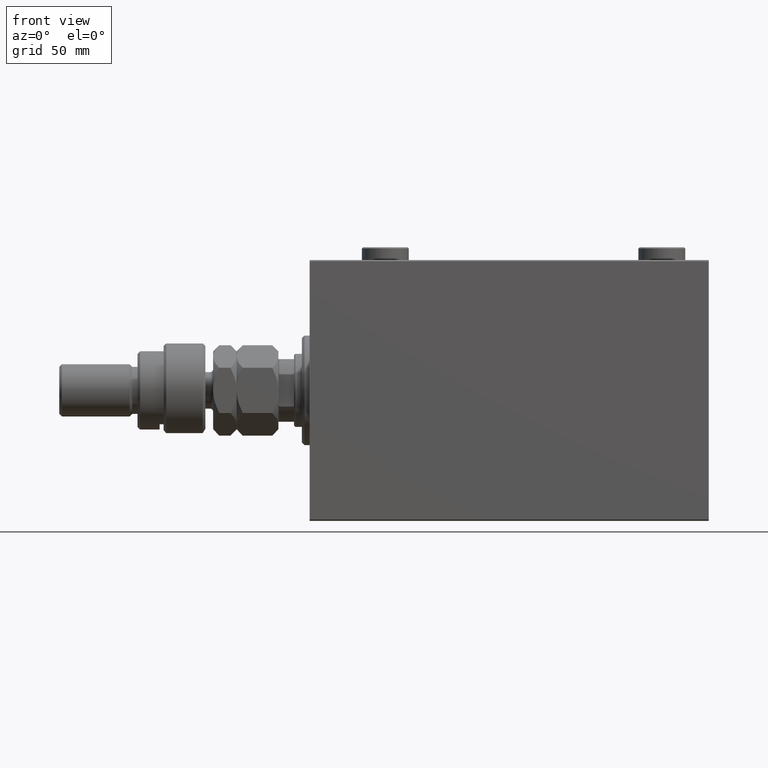
[diagram: clean part render]
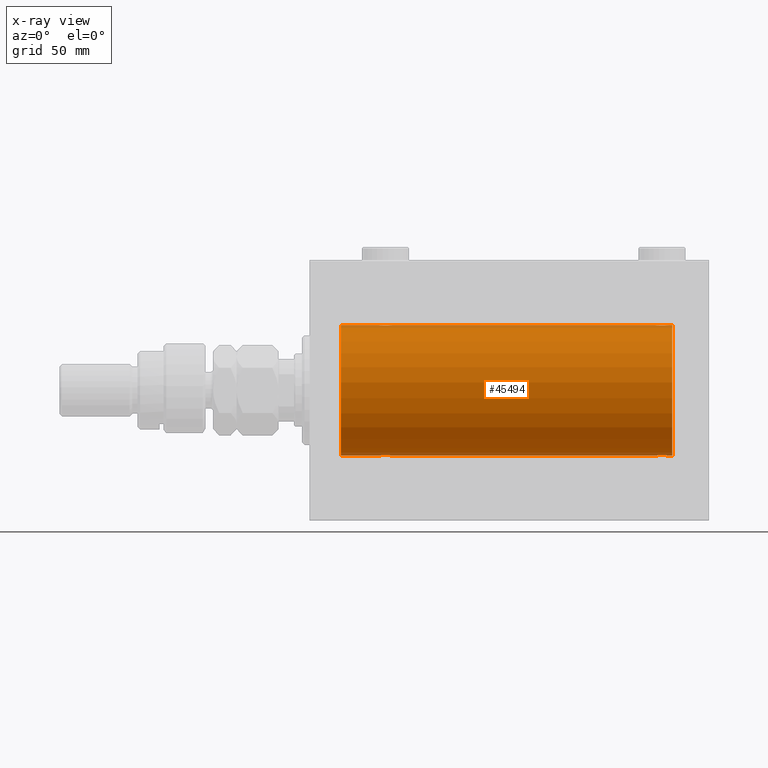
[diagram: x-ray — body ghosted, one internal face saturated and labeled with its STEP entity id]
A machine part, front view, then the same camera in x-ray: the body is ghosted and one INTERNAL B-rep face — a face not visible from any outside direction — is saturated and labeled: STEP entity #45494.
In plain terms, the highlighted cylindrical surface (partial cylindrical patch) has radius 25 mm, axis along (-1, -0, -0).
Its self-contained STEP definition (entity closure, byte-faithful):
#341 = CARTESIAN_POINT ( 'NONE',  ( 132.6278403059139634, -0.8058335233485478533, 24.98746277938383287 ) ) ;
#908 = CARTESIAN_POINT ( 'NONE',  ( 26.57985090779070703, -0.6480119923854250619, 24.99212088949390420 ) ) ;
#921 = ORIENTED_EDGE ( 'NONE', *, *, #1976, .F. ) ;
#1273 = CARTESIAN_POINT ( 'NONE',  ( 134.3543933385136881, -2.420689345803765047, -24.88254961038873248 ) ) ;
#1683 = VERTEX_POINT ( 'NONE', #27495 ) ;
#1739 = CARTESIAN_POINT ( 'NONE',  ( 137.2476025101955202, -1.106703319666879404, -24.97594585958023572 ) ) ;
#1766 = CARTESIAN_POINT ( 'NONE',  ( 133.1158761721353301, -1.651251241585108387, 24.94567559498349141 ) ) ;
#1798 = CARTESIAN_POINT ( 'NONE',  ( 31.42014909220930363, -0.6480119923854200659, -24.99212088949392196 ) ) ;
#1976 = EDGE_CURVE ( 'NONE', #23039, #1683, #23292, .T. ) ;
#2096 = CARTESIAN_POINT ( 'NONE',  ( 30.52256774340189693, -1.989585286700251920, 24.92087098724766747 ) ) ;
#2335 = CARTESIAN_POINT ( 'NONE',  ( 30.10723845838409929, -2.247417070759903268, 24.89885693081946272 ) ) ;
#2523 = CARTESIAN_POINT ( 'NONE',  ( 28.83676410361457343, -2.500125740978191846, -24.87467329022545925 ) ) ;
#4224 = VERTEX_POINT ( 'NONE', #15696 ) ;
#4302 = ORIENTED_EDGE ( 'NONE', *, *, #45968, .T. ) ;
#4979 = CARTESIAN_POINT ( 'NONE',  ( 134.6705231988572962, -2.483544361357272745, 24.87635491893501083 ) ) ;
#5011 = CARTESIAN_POINT ( 'NONE',  ( 30.65383336149337978, -1.881857718844712091, -24.92933960374833546 ) ) ;
#5070 = CARTESIAN_POINT ( 'NONE',  ( 31.43349355239748988, -0.6588655613945929579, 24.99312727339970053 ) ) ;
#5212 = ORIENTED_EDGE ( 'NONE', *, *, #27537, .T. ) ;
#5453 = CARTESIAN_POINT ( 'NONE',  ( 135.3259657003945904, -2.484007091859768313, 24.87630842367763151 ) ) ;
#5538 = CARTESIAN_POINT ( 'NONE',  ( 30.88185954148645251, -1.653834020452945364, 24.94550385189585029 ) ) ;
#5658 = CARTESIAN_POINT ( 'NONE',  ( 133.3487886644089144, -1.884161199660626229, -24.92916496727982789 ) ) ;
#5949 = CARTESIAN_POINT ( 'NONE',  ( 139.0000000000000000, 0.000000000000000000, 0.000000000000000000 ) ) ;
#6201 = CARTESIAN_POINT ( 'NONE',  ( 26.75393620905933290, -1.109818057797416158, -24.97580694515542277 ) ) ;
#6291 = DIRECTION ( 'NONE',  ( -1.000000000000000000, -0.000000000000000000, -0.000000000000000000 ) ) ;
#6350 = CARTESIAN_POINT ( 'NONE',  ( 139.0000000000000000, 3.061616997868383043E-15, -25.00000000000000000 ) ) ;
#7176 = CARTESIAN_POINT ( 'NONE',  ( 27.47743225659810307, -1.989585286700244149, -24.92087098724765681 ) ) ;
#7541 = CARTESIAN_POINT ( 'NONE',  ( 26.75239748980449050, -1.106703319666886065, 24.97594585958023572 ) ) ;
#7764 = CARTESIAN_POINT ( 'NONE',  ( 26.50000000000000355, -1.940558383798427991E-23, 25.00000000000000000 ) ) ;
#8057 = DIRECTION ( 'NONE',  ( -1.000000000000000000, 0.000000000000000000, 0.000000000000000000 ) ) ;
#8500 = CARTESIAN_POINT ( 'NONE',  ( 27.01250184165601453, -1.525407911884368861, 24.95379469572361941 ) ) ;
#8651 = CARTESIAN_POINT ( 'NONE',  ( 135.8043566091629941, -2.372734907014176553, 24.88722742718433167 ) ) ;
#8734 = CARTESIAN_POINT ( 'NONE',  ( 27.74616804575498108, -2.169003991399877318, 24.90589728951138326 ) ) ;
#8855 = CARTESIAN_POINT ( 'NONE',  ( 137.4841784005765817, -0.3254210271412169564, -24.99840249400844527 ) ) ;
#8971 = CARTESIAN_POINT ( 'NONE',  ( 28.19211657594193809, -2.371528299825754083, 24.88734287464370709 ) ) ;
#9090 = CARTESIAN_POINT ( 'NONE',  ( 135.6490439016909590, -2.419770561643903140, -24.88263927071751169 ) ) ;
#9116 = CARTESIAN_POINT ( 'NONE',  ( 137.4999999999999432, -0.3305063766663741132, 24.99999999999999645 ) ) ;
#9327 = CARTESIAN_POINT ( 'NONE',  ( 135.8078834240580761, -2.371528299825742092, -24.88734287464371775 ) ) ;
#9904 = ORIENTED_EDGE ( 'NONE', *, *, #17117, .T. ) ;
#10111 = CARTESIAN_POINT ( 'NONE',  ( 27.89276154161591137, -2.247417070759893498, -24.89885693081945917 ) ) ;
#10356 = VERTEX_POINT ( 'NONE', #35868 ) ;
#10754 = EDGE_LOOP ( 'NONE', ( #32730, #9904, #28607, #45910, #44148, #5212, #35202, #921, #4302, #18362, #40182, #15132 ) ) ;
#11943 = CARTESIAN_POINT ( 'NONE',  ( 26.50000000000000355, -1.940558383798427991E-23, 25.00000000000000000 ) ) ;
#12024 = CARTESIAN_POINT ( 'NONE',  ( 26.50000000000000355, -4.113702575029848227E-15, -25.00000000000000000 ) ) ;
#12334 = CARTESIAN_POINT ( 'NONE',  ( 137.4334935523974650, -0.6588655613945841871, 24.99312727339970763 ) ) ;
#12363 = CARTESIAN_POINT ( 'NONE',  ( 31.17011290280925451, -1.252049606094333578, -24.96900299967627745 ) ) ;
#12545 = CARTESIAN_POINT ( 'NONE',  ( 137.1701129028092225, -1.252049606094327583, -24.96900299967627390 ) ) ;
#12570 = CARTESIAN_POINT ( 'NONE',  ( 133.8896320349114148, -2.245863995402903157, 24.89899750494197761 ) ) ;
#12779 = CARTESIAN_POINT ( 'NONE',  ( 132.8317235850604447, -1.255214705003191877, -24.96884293994577675 ) ) ;
#12804 = CARTESIAN_POINT ( 'NONE',  ( 135.1632358963854017, -2.500125740978198063, 24.87467329022544504 ) ) ;
#13042 = CARTESIAN_POINT ( 'NONE',  ( 134.1921165759419239, -2.371528299825750530, 24.88734287464371420 ) ) ;
#13128 = CARTESIAN_POINT ( 'NONE',  ( 31.24606379094067066, -1.109818057797421709, 24.97580694515541921 ) ) ;
#13550 = CARTESIAN_POINT ( 'NONE',  ( 30.11036796508864910, -2.245863995402895164, -24.89899750494197406 ) ) ;
#14122 = EDGE_CURVE ( 'NONE', #4224, #1683, #17685, .T. ) ;
#14288 = CARTESIAN_POINT ( 'NONE',  ( 27.34878866440888245, -1.884161199660614017, -24.92916496727982434 ) ) ;
#14536 = AXIS2_PLACEMENT_3D ( 'NONE', #33121, #29436, #44447 ) ;
#14551 = LINE ( 'NONE', #17988, #26831 ) ;
#15132 = ORIENTED_EDGE ( 'NONE', *, *, #17538, .F. ) ;
#15339 = B_SPLINE_CURVE_WITH_KNOTS ( 'NONE', 3,
 ( #24107, #16047, #35401, #1798, #46006, #16760, #12363, #31709, #38615, #5011, #34930, #46710, #13550, #17238, #48182, #29488, #18213, #2523, #36867, #47929, #32686, #10111, #21156, #7176, #14288, #21658, #47189, #36379, #6201, #25315, #33176, #28501 ),
 .UNSPECIFIED., .F., .F.,
 ( 4, 2, 2, 2, 2, 2, 2, 2, 2, 2, 2, 2, 2, 2, 2, 4 ),
 ( 0.007821024441662299820, 0.008309723826317907958, 0.008798423210973517830, 0.009287122595629122498, 0.009775821980284727167, 0.01026452136494033184, 0.01075322074959593650, 0.01124192013425154291, 0.01173061951890714757, 0.01221931890356275051, 0.01270801828821835691, 0.01319671767287396158, 0.01368541705752956625, 0.01417411644218517092, 0.01466281582684077732, 0.01564021459615199186 ),
 .UNSPECIFIED. ) ;
#15696 = CARTESIAN_POINT ( 'NONE',  ( 12.00000000000001066, 3.061616997868383043E-15, -25.00000000000000000 ) ) ;
#16047 = CARTESIAN_POINT ( 'NONE',  ( 31.50000000000000000, -0.1631750940176180942, -25.00000000000001066 ) ) ;
#16226 = CARTESIAN_POINT ( 'NONE',  ( 133.1181404585135510, -1.653834020452947806, -24.94550385189585029 ) ) ;
#16253 = CARTESIAN_POINT ( 'NONE',  ( 133.0125018416559612, -1.525407911884361534, 24.95379469572361941 ) ) ;
#16337 = CARTESIAN_POINT ( 'NONE',  ( 139.0000000000000000, 0.000000000000000000, 25.00000000000000000 ) ) ;
#16462 = CARTESIAN_POINT ( 'NONE',  ( 136.1103679650886988, -2.245863995402891167, -24.89899750494197406 ) ) ;
#16494 = LINE ( 'NONE', #20650, #22756 ) ;
#16570 = CARTESIAN_POINT ( 'NONE',  ( 30.65121133559112110, -1.884161199660624009, 24.92916496727982434 ) ) ;
#16700 = CARTESIAN_POINT ( 'NONE',  ( 132.5665064476025634, -0.6588655613945936240, -24.99312727339970408 ) ) ;
#16727 = CARTESIAN_POINT ( 'NONE',  ( 137.5000000000000000, 1.260306552623302501E-15, 25.00000000000000000 ) ) ;
#16760 = CARTESIAN_POINT ( 'NONE',  ( 31.24760251019550950, -1.106703319666878071, -24.97594585958023572 ) ) ;
#16937 = CARTESIAN_POINT ( 'NONE',  ( 133.7491597607594542, -2.170728182476728829, -24.90574631553724672 ) ) ;
#17117 = EDGE_CURVE ( 'NONE', #47556, #10356, #37019, .T. ) ;
#17229 = CYLINDRICAL_SURFACE ( 'NONE', #27108, 25.00000000000000000 ) ;
#17238 = CARTESIAN_POINT ( 'NONE',  ( 29.80788342405805835, -2.371528299825741648, -24.88734287464370709 ) ) ;
#17311 = LINE ( 'NONE', #43579, #25430 ) ;
#17538 = EDGE_CURVE ( 'NONE', #47105, #46636, #39914, .T. ) ;
#17685 = CIRCLE ( 'NONE', #14536, 25.00000000000000000 ) ;
#17988 = CARTESIAN_POINT ( 'NONE',  ( 139.0000000000000000, 3.061616997868383043E-15, -25.00000000000000000 ) ) ;
#18122 = VERTEX_POINT ( 'NONE', #35801 ) ;
#18157 = AXIS2_PLACEMENT_3D ( 'NONE', #18847, #8057, #33569 ) ;
#18213 = CARTESIAN_POINT ( 'NONE',  ( 29.16706495178060621, -2.499872792855077464, -24.87469871246082320 ) ) ;
#18362 = ORIENTED_EDGE ( 'NONE', *, *, #41137, .F. ) ;
#18654 = VECTOR ( 'NONE', #36527, 1000.000000000000000 ) ;
#18847 = CARTESIAN_POINT ( 'NONE',  ( 139.0000000000000000, 0.000000000000000000, 0.000000000000000000 ) ) ;
#18968 = CARTESIAN_POINT ( 'NONE',  ( 132.5798509077906999, -0.6480119923854225084, 24.99212088949390775 ) ) ;
#20019 = CARTESIAN_POINT ( 'NONE',  ( 28.35095609830903740, -2.419770561643915130, 24.88263927071751169 ) ) ;
#20142 = CARTESIAN_POINT ( 'NONE',  ( 133.4774322565981208, -1.989585286700256805, -24.92087098724766747 ) ) ;
#20207 = CARTESIAN_POINT ( 'NONE',  ( 132.5000000000000000, -1.941505016884693205E-23, 25.00000000000000000 ) ) ;
#20490 = CARTESIAN_POINT ( 'NONE',  ( 30.98538033717094464, -1.528152964861317020, 24.95362559291378801 ) ) ;
#20612 = CARTESIAN_POINT ( 'NONE',  ( 132.5000000000000000, -0.3305063766663871583, -25.00000000000000000 ) ) ;
#20650 = CARTESIAN_POINT ( 'NONE',  ( 139.0000000000000000, 3.061616997868383043E-15, -25.00000000000000000 ) ) ;
#20735 = CARTESIAN_POINT ( 'NONE',  ( 27.88963203491136156, -2.245863995402906266, 24.89899750494197050 ) ) ;
#21011 = CARTESIAN_POINT ( 'NONE',  ( 31.50000000000000000, 3.061616978460191625E-15, -25.00000000000000000 ) ) ;
#21156 = CARTESIAN_POINT ( 'NONE',  ( 27.74915976075945068, -2.170728182476717283, -24.90574631553725027 ) ) ;
#21305 = CIRCLE ( 'NONE', #18157, 25.00000000000000000 ) ;
#21658 = CARTESIAN_POINT ( 'NONE',  ( 27.11814045851354038, -1.653834020452936038, -24.94550385189584674 ) ) ;
#21812 = VECTOR ( 'NONE', #6291, 1000.000000000000000 ) ;
#22749 = VERTEX_POINT ( 'NONE', #21011 ) ;
#22756 = VECTOR ( 'NONE', #31685, 1000.000000000000000 ) ;
#23039 = VERTEX_POINT ( 'NONE', #7764 ) ;
#23292 = LINE ( 'NONE', #41249, #32279 ) ;
#23367 = CARTESIAN_POINT ( 'NONE',  ( 132.8298870971907490, -1.252049606094332246, 24.96900299967627390 ) ) ;
#23460 = CARTESIAN_POINT ( 'NONE',  ( 27.11587617213529100, -1.651251241585107055, 24.94567559498349141 ) ) ;
#23690 = CARTESIAN_POINT ( 'NONE',  ( 28.83293504821939379, -2.499872792855087233, 24.87469871246083031 ) ) ;
#23813 = CARTESIAN_POINT ( 'NONE',  ( 137.4201490922092717, -0.6480119923854171793, -24.99212088949390775 ) ) ;
#23841 = CARTESIAN_POINT ( 'NONE',  ( 136.5225677434018792, -1.989585286700258138, 24.92087098724766037 ) ) ;
#24107 = CARTESIAN_POINT ( 'NONE',  ( 31.50000000000000000, 3.061616978460191625E-15, -25.00000000000000000 ) ) ;
#24163 = CARTESIAN_POINT ( 'NONE',  ( 29.16323589638543012, -2.500125740978201172, 24.87467329022545215 ) ) ;
#24281 = CARTESIAN_POINT ( 'NONE',  ( 135.3294768011427607, -2.483544361357268748, -24.87635491893502149 ) ) ;
#24312 = CARTESIAN_POINT ( 'NONE',  ( 133.7461680457550131, -2.169003991399871545, 24.90589728951138682 ) ) ;
#24577 = CARTESIAN_POINT ( 'NONE',  ( 139.0000000000000000, 3.061616997868383043E-15, -25.00000000000000000 ) ) ;
#25315 = CARTESIAN_POINT ( 'NONE',  ( 26.56650644760252789, -0.6588655613945878509, -24.99312727339970763 ) ) ;
#25430 = VECTOR ( 'NONE', #31781, 1000.000000000000000 ) ;
#25838 = CARTESIAN_POINT ( 'NONE',  ( 132.5000000000000000, -1.941505016884693205E-23, 25.00000000000000000 ) ) ;
#26316 = CARTESIAN_POINT ( 'NONE',  ( 132.5000000000000000, -0.1631750940176196485, 25.00000000000000711 ) ) ;
#26831 = VECTOR ( 'NONE', #37130, 1000.000000000000000 ) ;
#27017 = CARTESIAN_POINT ( 'NONE',  ( 137.5000000000000000, 1.260306552623302501E-15, 25.00000000000000000 ) ) ;
#27044 = CARTESIAN_POINT ( 'NONE',  ( 136.9853803371709660, -1.528152964861302587, 24.95362559291378801 ) ) ;
#27108 = AXIS2_PLACEMENT_3D ( 'NONE', #5949, #32916, #39573 ) ;
#27129 = CARTESIAN_POINT ( 'NONE',  ( 26.62784030591392437, -0.8058335233485486304, 24.98746277938383287 ) ) ;
#27250 = CARTESIAN_POINT ( 'NONE',  ( 137.5000000000000000, 3.061616978453486307E-15, -25.00000000000000000 ) ) ;
#27369 = CARTESIAN_POINT ( 'NONE',  ( 31.50000000000000000, -5.721564010423432822E-15, 25.00000000000000000 ) ) ;
#27486 = CARTESIAN_POINT ( 'NONE',  ( 132.5000000000000000, -1.188716680102861075E-14, -25.00000000000000000 ) ) ;
#27495 = CARTESIAN_POINT ( 'NONE',  ( 12.00000000000001066, 0.000000000000000000, 25.00000000000000000 ) ) ;
#27537 = EDGE_CURVE ( 'NONE', #29324, #4224, #16494, .T. ) ;
#27751 = CARTESIAN_POINT ( 'NONE',  ( 134.8329350482193547, -2.499872792855083237, 24.87469871246082675 ) ) ;
#27828 = B_SPLINE_CURVE_WITH_KNOTS ( 'NONE', 3,
 ( #11943, #38196, #34505, #908, #27129, #7541, #42135, #8500, #23460, #47007, #31764, #8734, #20735, #8971, #20019, #28076, #23690, #24163, #39161, #38919, #43087, #2335, #46767, #2096, #16570, #5538, #20490, #46292, #13128, #5070, #27840, #27369 ),
 .UNSPECIFIED., .F., .F.,
 ( 4, 2, 2, 2, 2, 2, 2, 2, 2, 2, 2, 2, 2, 2, 2, 4 ),
 ( 0.007821024441662235635, 0.008309723826317840303, 0.008798423210973443237, 0.009287122595629047905, 0.009775821980284652574, 0.01026452136494025724, 0.01075322074959586018, 0.01124192013425146484, 0.01173061951890706778, 0.01221931890356267245, 0.01270801828821827711, 0.01319671767287388178, 0.01368541705752948472, 0.01417411644218508938, 0.01466281582684069232, 0.01564021459615190165 ),
 .UNSPECIFIED. ) ;
#27840 = CARTESIAN_POINT ( 'NONE',  ( 31.49999999999997158, -0.3305063766663706160, 25.00000000000000000 ) ) ;
#27986 = CARTESIAN_POINT ( 'NONE',  ( 135.6456066614863119, -2.420689345803765935, 24.88254961038872892 ) ) ;
#28076 = CARTESIAN_POINT ( 'NONE',  ( 28.67052319885732103, -2.483544361357276742, 24.87635491893501793 ) ) ;
#28501 = CARTESIAN_POINT ( 'NONE',  ( 26.50000000000000355, -4.113702575029848227E-15, -25.00000000000000000 ) ) ;
#28607 = ORIENTED_EDGE ( 'NONE', *, *, #46645, .T. ) ;
#29324 = VERTEX_POINT ( 'NONE', #12024 ) ;
#29436 = DIRECTION ( 'NONE',  ( -1.000000000000000000, 0.000000000000000000, 0.000000000000000000 ) ) ;
#29488 = CARTESIAN_POINT ( 'NONE',  ( 29.32947680114268252, -2.483544361357266084, -24.87635491893501083 ) ) ;
#30457 = EDGE_CURVE ( 'NONE', #47556, #47105, #21305, .T. ) ;
#30730 = CARTESIAN_POINT ( 'NONE',  ( 137.1682764149396405, -1.255214705003171671, 24.96884293994578741 ) ) ;
#30946 = CARTESIAN_POINT ( 'NONE',  ( 136.8841238278646983, -1.651251241585105944, -24.94567559498349141 ) ) ;
#30972 = CARTESIAN_POINT ( 'NONE',  ( 136.2508402392405458, -2.170728182476731050, 24.90574631553725027 ) ) ;
#31351 = CARTESIAN_POINT ( 'NONE',  ( 31.50000000000000000, -5.721564010423432822E-15, 25.00000000000000000 ) ) ;
#31409 = CARTESIAN_POINT ( 'NONE',  ( 134.1956433908370059, -2.372734907014174777, -24.88722742718433167 ) ) ;
#31415 = EDGE_CURVE ( 'NONE', #22749, #29324, #15339, .T. ) ;
#31649 = CARTESIAN_POINT ( 'NONE',  ( 136.6538333614934118, -1.881857718844720528, -24.92933960374834257 ) ) ;
#31685 = DIRECTION ( 'NONE',  ( -1.000000000000000000, -0.000000000000000000, -0.000000000000000000 ) ) ;
#31709 = CARTESIAN_POINT ( 'NONE',  ( 30.98749815834398902, -1.525407911884361312, -24.95379469572362652 ) ) ;
#31764 = CARTESIAN_POINT ( 'NONE',  ( 27.47463817756919369, -1.987446652080269383, 24.92104239223420592 ) ) ;
#31781 = DIRECTION ( 'NONE',  ( -1.000000000000000000, -0.000000000000000000, -0.000000000000000000 ) ) ;
#32078 = VERTEX_POINT ( 'NONE', #20207 ) ;
#32279 = VECTOR ( 'NONE', #37560, 1000.000000000000000 ) ;
#32686 = CARTESIAN_POINT ( 'NONE',  ( 28.19564339083698457, -2.372734907014171224, -24.88722742718433523 ) ) ;
#32730 = ORIENTED_EDGE ( 'NONE', *, *, #30457, .F. ) ;
#32916 = DIRECTION ( 'NONE',  ( -1.000000000000000000, -0.000000000000000000, -0.000000000000000000 ) ) ;
#33042 = EDGE_CURVE ( 'NONE', #18122, #22749, #14551, .T. ) ;
#33121 = CARTESIAN_POINT ( 'NONE',  ( 12.00000000000001066, 0.000000000000000000, 0.000000000000000000 ) ) ;
#33176 = CARTESIAN_POINT ( 'NONE',  ( 26.50000000000000000, -0.3305063766663763336, -25.00000000000000355 ) ) ;
#33569 = DIRECTION ( 'NONE',  ( 0.000000000000000000, 0.000000000000000000, 1.000000000000000000 ) ) ;
#34505 = CARTESIAN_POINT ( 'NONE',  ( 26.51582159942343608, -0.3254210271412246724, 24.99840249400844883 ) ) ;
#34627 = CARTESIAN_POINT ( 'NONE',  ( 132.7539362090593045, -1.109818057797421043, -24.97580694515541921 ) ) ;
#34655 = CARTESIAN_POINT ( 'NONE',  ( 136.1072384583841313, -2.247417070759898383, 24.89885693081946982 ) ) ;
#34874 = CARTESIAN_POINT ( 'NONE',  ( 137.5000000000000284, -0.1631750940176156794, -25.00000000000001421 ) ) ;
#34930 = CARTESIAN_POINT ( 'NONE',  ( 30.52536182243081342, -1.987446652080259391, -24.92104239223420592 ) ) ;
#35202 = ORIENTED_EDGE ( 'NONE', *, *, #14122, .T. ) ;
#35401 = CARTESIAN_POINT ( 'NONE',  ( 31.48417840057656747, -0.3254210271412200650, -24.99840249400844527 ) ) ;
#35801 = CARTESIAN_POINT ( 'NONE',  ( 132.5000000000000000, -1.188716680102861075E-14, -25.00000000000000000 ) ) ;
#35868 = CARTESIAN_POINT ( 'NONE',  ( 137.5000000000000000, 3.061616978453486307E-15, -25.00000000000000000 ) ) ;
#36379 = CARTESIAN_POINT ( 'NONE',  ( 26.83172358506043054, -1.255214705003178555, -24.96884293994578030 ) ) ;
#36527 = DIRECTION ( 'NONE',  ( -1.000000000000000000, -0.000000000000000000, -0.000000000000000000 ) ) ;
#36867 = CARTESIAN_POINT ( 'NONE',  ( 28.67403429960540606, -2.484007091859761207, -24.87630842367763506 ) ) ;
#37019 = LINE ( 'NONE', #6350, #18654 ) ;
#37130 = DIRECTION ( 'NONE',  ( -1.000000000000000000, -0.000000000000000000, -0.000000000000000000 ) ) ;
#37162 = B_SPLINE_CURVE_WITH_KNOTS ( 'NONE', 3,
 ( #27250, #34874, #8855, #23813, #42971, #1739, #12545, #39278, #30946, #31649, #42742, #46181, #16462, #9327, #9090, #24281, #42499, #46415, #42024, #1273, #31409, #38801, #16937, #20142, #5658, #16226, #38556, #12779, #34627, #16700, #20612, #27486 ),
 .UNSPECIFIED., .F., .F.,
 ( 4, 2, 2, 2, 2, 2, 2, 2, 2, 2, 2, 2, 2, 2, 2, 4 ),
 ( 0.007821024441662289411, 0.008309723826317897549, 0.008798423210973505687, 0.009287122595629115560, 0.009775821980284723697, 0.01026452136494033357, 0.01075322074959594171, 0.01124192013425155158, 0.01173061951890715972, 0.01221931890356276786, 0.01270801828821837773, 0.01319671767287398587, 0.01368541705752959400, 0.01417411644218520214, 0.01466281582684081028, 0.01564021459615199533 ),
 .UNSPECIFIED. ) ;
#37242 = EDGE_CURVE ( 'NONE', #32078, #46636, #47123, .T. ) ;
#37560 = DIRECTION ( 'NONE',  ( -1.000000000000000000, -0.000000000000000000, -0.000000000000000000 ) ) ;
#38196 = CARTESIAN_POINT ( 'NONE',  ( 26.50000000000000711, -0.1631750940176215914, 25.00000000000000711 ) ) ;
#38556 = CARTESIAN_POINT ( 'NONE',  ( 133.0146196628290340, -1.528152964861320573, -24.95362559291378446 ) ) ;
#38615 = CARTESIAN_POINT ( 'NONE',  ( 30.88412382786470900, -1.651251241585097063, -24.94567559498348075 ) ) ;
#38801 = CARTESIAN_POINT ( 'NONE',  ( 133.8927615416158687, -2.247417070759898383, -24.89885693081946272 ) ) ;
#38833 = CARTESIAN_POINT ( 'NONE',  ( 133.3461666385065882, -1.881857718844722305, 24.92933960374833546 ) ) ;
#38919 = CARTESIAN_POINT ( 'NONE',  ( 29.64560666148631896, -2.420689345803765491, 24.88254961038873958 ) ) ;
#39161 = CARTESIAN_POINT ( 'NONE',  ( 29.32596570039460104, -2.484007091859769645, 24.87630842367763506 ) ) ;
#39278 = CARTESIAN_POINT ( 'NONE',  ( 136.9874981583440103, -1.525407911884357315, -24.95379469572362297 ) ) ;
#39573 = DIRECTION ( 'NONE',  ( 0.000000000000000000, 0.000000000000000000, 1.000000000000000000 ) ) ;
#39914 = LINE ( 'NONE', #48021, #21812 ) ;
#40182 = ORIENTED_EDGE ( 'NONE', *, *, #37242, .T. ) ;
#41137 = EDGE_CURVE ( 'NONE', #32078, #48190, #17311, .T. ) ;
#41249 = CARTESIAN_POINT ( 'NONE',  ( 139.0000000000000000, 0.000000000000000000, 25.00000000000000000 ) ) ;
#41321 = CARTESIAN_POINT ( 'NONE',  ( 132.5158215994234752, -0.3254210271412218414, 24.99840249400845238 ) ) ;
#42024 = CARTESIAN_POINT ( 'NONE',  ( 134.6740342996053812, -2.484007091859767424, -24.87630842367762796 ) ) ;
#42135 = CARTESIAN_POINT ( 'NONE',  ( 26.82988709719075970, -1.252049606094340239, 24.96900299967627390 ) ) ;
#42287 = CARTESIAN_POINT ( 'NONE',  ( 134.3509560983090694, -2.419770561643911133, 24.88263927071751169 ) ) ;
#42499 = CARTESIAN_POINT ( 'NONE',  ( 135.1670649517806169, -2.499872792855082348, -24.87469871246082675 ) ) ;
#42742 = CARTESIAN_POINT ( 'NONE',  ( 136.5253618224308525, -1.987446652080261167, -24.92104239223420947 ) ) ;
#42768 = CARTESIAN_POINT ( 'NONE',  ( 137.2460637909406955, -1.109818057797415713, 24.97580694515542987 ) ) ;
#42971 = CARTESIAN_POINT ( 'NONE',  ( 137.3721596940860650, -0.8058335233485420801, -24.98746277938383287 ) ) ;
#43001 = CARTESIAN_POINT ( 'NONE',  ( 136.6512113355911140, -1.884161199660603137, 24.92916496727982079 ) ) ;
#43087 = CARTESIAN_POINT ( 'NONE',  ( 29.80435660916301899, -2.372734907014180994, 24.88722742718433878 ) ) ;
#43255 = FACE_OUTER_BOUND ( 'NONE', #10754, .T. ) ;
#43579 = CARTESIAN_POINT ( 'NONE',  ( 139.0000000000000000, 0.000000000000000000, 25.00000000000000000 ) ) ;
#44148 = ORIENTED_EDGE ( 'NONE', *, *, #31415, .T. ) ;
#44447 = DIRECTION ( 'NONE',  ( 0.000000000000000000, 0.000000000000000000, 1.000000000000000000 ) ) ;
#45238 = CARTESIAN_POINT ( 'NONE',  ( 132.7523974898045083, -1.106703319666886065, 24.97594585958023927 ) ) ;
#45494 = ADVANCED_FACE ( 'NONE', ( #43255 ), #17229, .F. ) ;
#45910 = ORIENTED_EDGE ( 'NONE', *, *, #33042, .T. ) ;
#45968 = EDGE_CURVE ( 'NONE', #23039, #48190, #27828, .T. ) ;
#45977 = CARTESIAN_POINT ( 'NONE',  ( 136.8818595414864490, -1.653834020452921383, 24.94550385189584318 ) ) ;
#46006 = CARTESIAN_POINT ( 'NONE',  ( 31.37215969408607563, -0.8058335233485418581, -24.98746277938382931 ) ) ;
#46181 = CARTESIAN_POINT ( 'NONE',  ( 136.2538319542450722, -2.169003991399869324, -24.90589728951138682 ) ) ;
#46292 = CARTESIAN_POINT ( 'NONE',  ( 31.16827641493957302, -1.255214705003186992, 24.96884293994578385 ) ) ;
#46415 = CARTESIAN_POINT ( 'NONE',  ( 134.8367641036145699, -2.500125740978196731, -24.87467329022544504 ) ) ;
#46636 = VERTEX_POINT ( 'NONE', #27017 ) ;
#46645 = EDGE_CURVE ( 'NONE', #10356, #18122, #37162, .T. ) ;
#46680 = CARTESIAN_POINT ( 'NONE',  ( 133.4746381775691759, -1.987446652080261167, 24.92104239223419881 ) ) ;
#46710 = CARTESIAN_POINT ( 'NONE',  ( 30.25383195424502958, -2.169003991399867104, -24.90589728951138326 ) ) ;
#46767 = CARTESIAN_POINT ( 'NONE',  ( 30.25084023924055643, -2.170728182476726609, 24.90574631553725027 ) ) ;
#47007 = CARTESIAN_POINT ( 'NONE',  ( 27.34616663850662377, -1.881857718844722305, 24.92933960374833902 ) ) ;
#47105 = VERTEX_POINT ( 'NONE', #16337 ) ;
#47123 = B_SPLINE_CURVE_WITH_KNOTS ( 'NONE', 3,
 ( #25838, #26316, #41321, #18968, #341, #45238, #23367, #16253, #1766, #38833, #46680, #24312, #12570, #13042, #42287, #4979, #27751, #12804, #5453, #27986, #8651, #34655, #30972, #23841, #43001, #45977, #27044, #30730, #42768, #12334, #9116, #16727 ),
 .UNSPECIFIED., .F., .F.,
 ( 4, 2, 2, 2, 2, 2, 2, 2, 2, 2, 2, 2, 2, 2, 2, 4 ),
 ( 0.007821024441662285942, 0.008309723826317895815, 0.008798423210973505687, 0.009287122595629115560, 0.009775821980284725432, 0.01026452136494033357, 0.01075322074959594344, 0.01124192013425155331, 0.01173061951890716319, 0.01221931890356277306, 0.01270801828821838120, 0.01319671767287399280, 0.01368541705752960094, 0.01417411644218521255, 0.01466281582684082069, 0.01564021459615200921 ),
 .UNSPECIFIED. ) ;
#47189 = CARTESIAN_POINT ( 'NONE',  ( 27.01461966282905180, -1.528152964861308138, -24.95362559291378801 ) ) ;
#47556 = VERTEX_POINT ( 'NONE', #24577 ) ;
#47929 = CARTESIAN_POINT ( 'NONE',  ( 28.35439333851368460, -2.420689345803756165, -24.88254961038873958 ) ) ;
#48021 = CARTESIAN_POINT ( 'NONE',  ( 139.0000000000000000, 0.000000000000000000, 25.00000000000000000 ) ) ;
#48182 = CARTESIAN_POINT ( 'NONE',  ( 29.64904390169096970, -2.419770561643905804, -24.88263927071751169 ) ) ;
#48190 = VERTEX_POINT ( 'NONE', #31351 ) ;